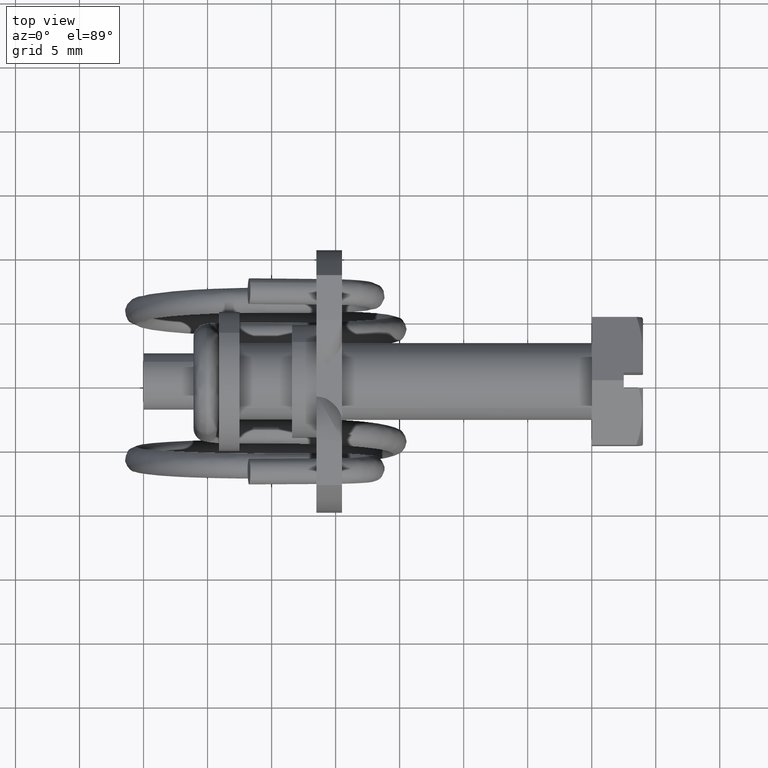
[diagram: clean part render]
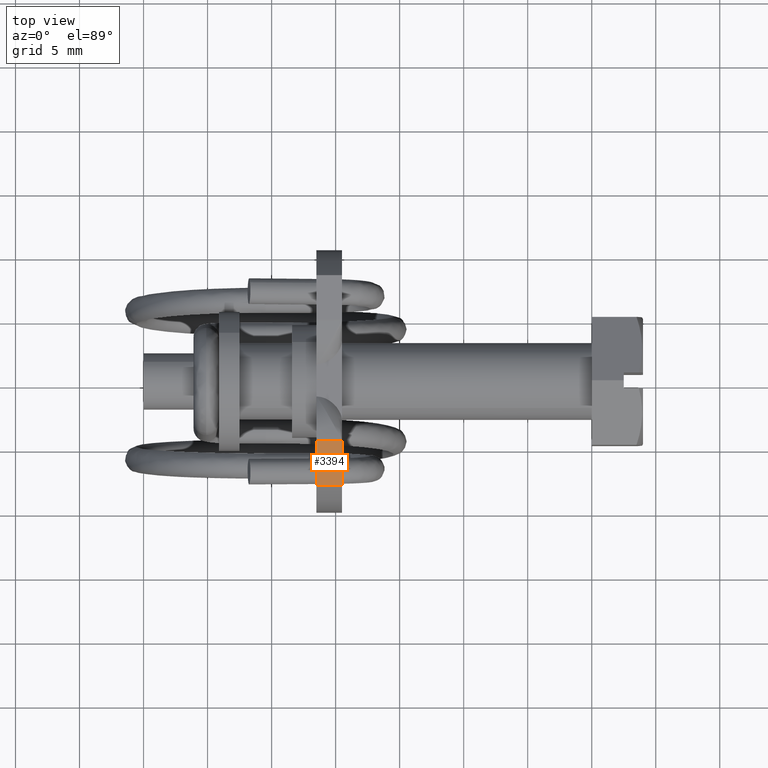
[diagram: same view with one face highlighted and labeled with its STEP entity id]
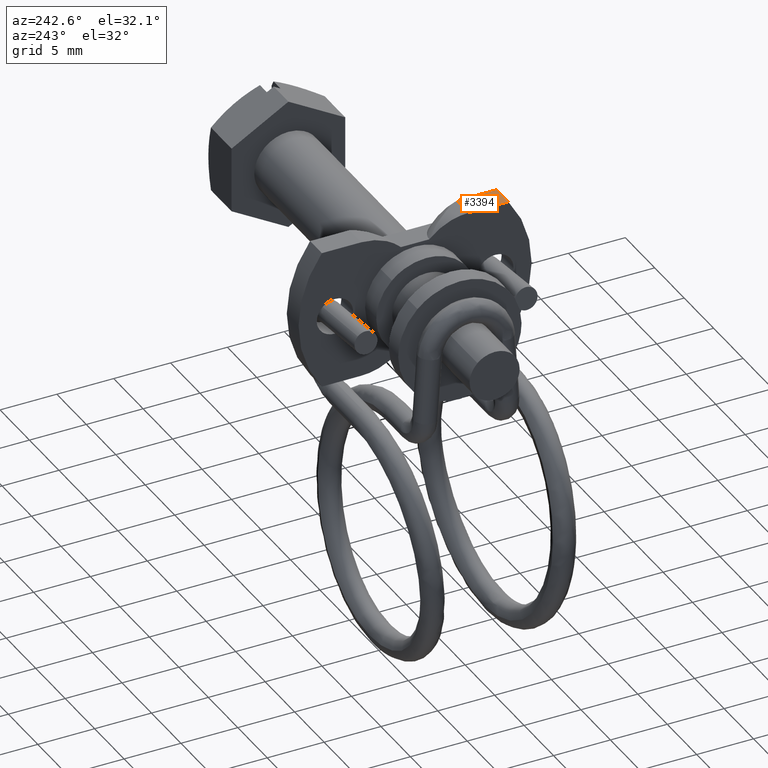
[diagram: same view with one face highlighted and labeled with its STEP entity id]
A machine part, top view. The second image highlights one B-rep face of the part: STEP entity #3394.
A second angle (auxiliary view) of the same face is appended — the face is thin or edge-on in the first view.
In plain terms, the highlighted face is a freeform B-spline surface patch.
Its self-contained STEP definition (entity closure, byte-faithful):
#3123=CARTESIAN_POINT('',(-19.500000000008850,-4.724999999999910,6.150000000000119));
#3124=VERTEX_POINT('',#3123);
#3172=CARTESIAN_POINT('',(-19.500000000008850,-8.200000000000001,6.150000000000119));
#3173=VERTEX_POINT('',#3172);
#3174=CARTESIAN_POINT('',(-19.500000000008850,-4.724999999999910,6.150000000000119));
#3175=CARTESIAN_POINT('',(-19.500000000008850,-8.200000000000001,6.150000000000119));
#3176=QUASI_UNIFORM_CURVE('',1,(#3174,#3175),.UNSPECIFIED.,.F.,.U.);
#3177=EDGE_CURVE('',#3124,#3173,#3176,.T.);
#3226=CARTESIAN_POINT('',(-21.500000000008850,-4.724999999999910,6.150000000000119));
#3227=VERTEX_POINT('',#3226);
#3265=CARTESIAN_POINT('',(-21.500000000008850,-8.200000000000001,6.150000000000119));
#3266=VERTEX_POINT('',#3265);
#3282=CARTESIAN_POINT('',(-21.500000000008850,-4.724999999999910,6.150000000000119));
#3283=CARTESIAN_POINT('',(-21.500000000008850,-8.200000000000001,6.150000000000119));
#3284=QUASI_UNIFORM_CURVE('',1,(#3282,#3283),.UNSPECIFIED.,.F.,.U.);
#3285=EDGE_CURVE('',#3227,#3266,#3284,.T.);
#3369=CARTESIAN_POINT('',(-21.500000000008850,-8.200000000000001,6.150000000000119));
#3370=CARTESIAN_POINT('',(-19.500000000008850,-8.200000000000001,6.150000000000119));
#3371=QUASI_UNIFORM_CURVE('',1,(#3369,#3370),.UNSPECIFIED.,.F.,.U.);
#3372=EDGE_CURVE('',#3266,#3173,#3371,.T.);
#3379=CARTESIAN_POINT('',(-21.599899996132461,-8.373576243264781,6.150000000000119));
#3380=CARTESIAN_POINT('',(-19.400099950241049,-8.373576243264781,6.150000000000119));
#3381=CARTESIAN_POINT('',(-21.599899996132461,-4.551423663528365,6.150000000000119));
#3382=CARTESIAN_POINT('',(-19.400099950241049,-4.551423663528365,6.150000000000119));
#3383=B_SPLINE_SURFACE_WITH_KNOTS('',1,1,((#3379,#3381),(#3380,#3382)),.UNSPECIFIED.,.F.,.F.,.U.,(2,2),(2,2),(0.0,2.199800045891411),(0.0,3.822152579736416),.UNSPECIFIED.);
#3384=ORIENTED_EDGE('',*,*,#3177,.F.);
#3385=CARTESIAN_POINT('',(-21.500000000008850,-4.724999999999910,6.150000000000119));
#3386=CARTESIAN_POINT('',(-19.500000000008850,-4.724999999999910,6.150000000000119));
#3387=QUASI_UNIFORM_CURVE('',1,(#3385,#3386),.UNSPECIFIED.,.F.,.U.);
#3388=EDGE_CURVE('',#3227,#3124,#3387,.T.);
#3389=ORIENTED_EDGE('',*,*,#3388,.F.);
#3390=ORIENTED_EDGE('',*,*,#3285,.T.);
#3391=ORIENTED_EDGE('',*,*,#3372,.T.);
#3392=EDGE_LOOP('',(#3384,#3389,#3390,#3391));
#3393=FACE_OUTER_BOUND('',#3392,.T.);
#3394=ADVANCED_FACE('',(#3393),#3383,.T.);